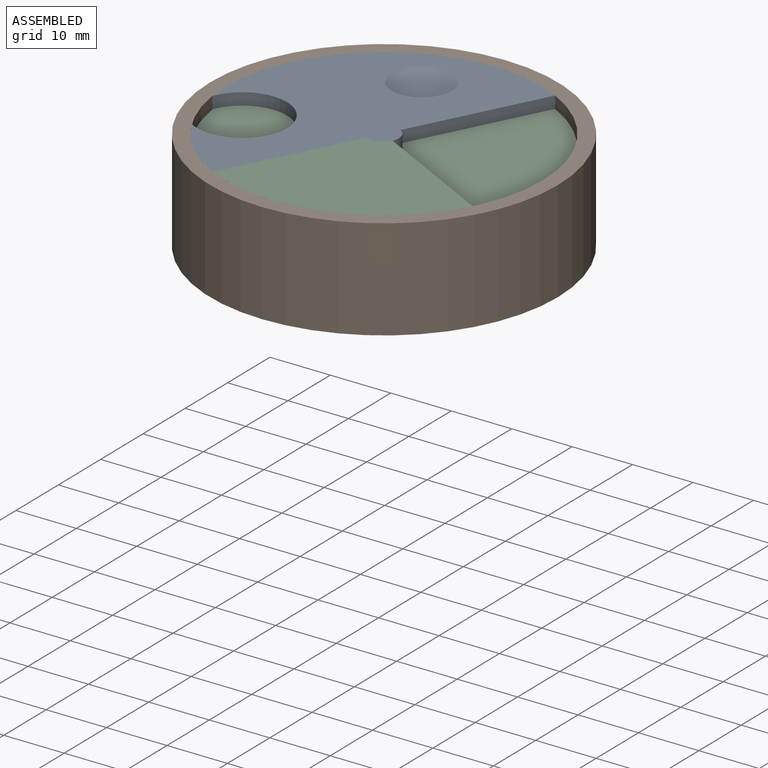
[diagram: assembled view]
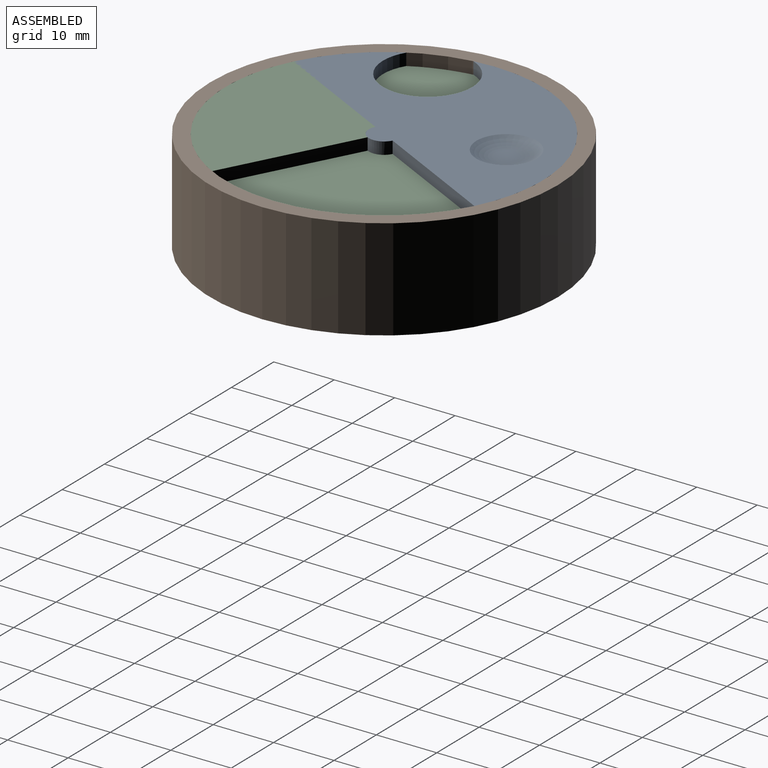
[diagram: assembled view, second angle]
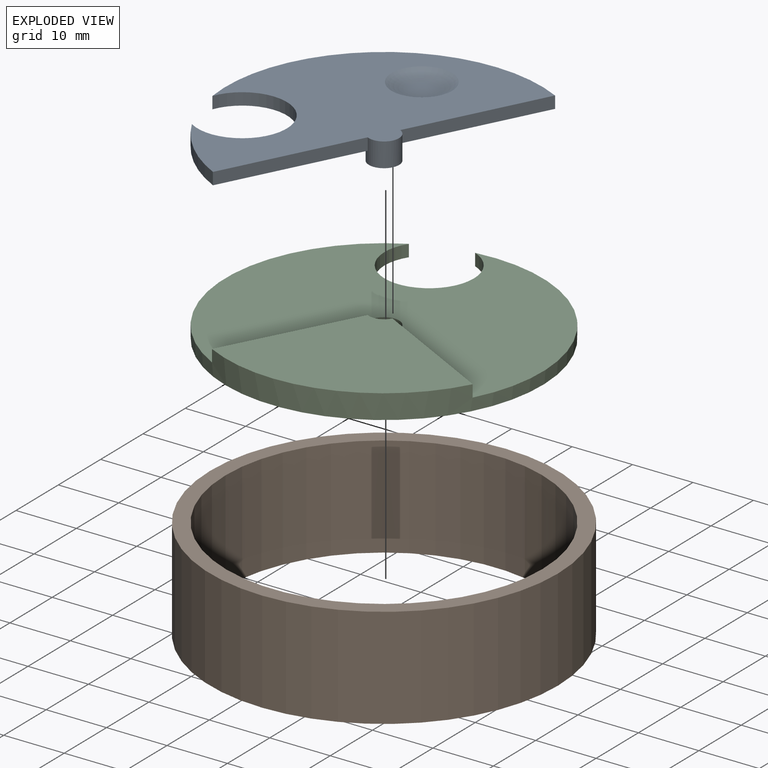
[diagram: exploded view]
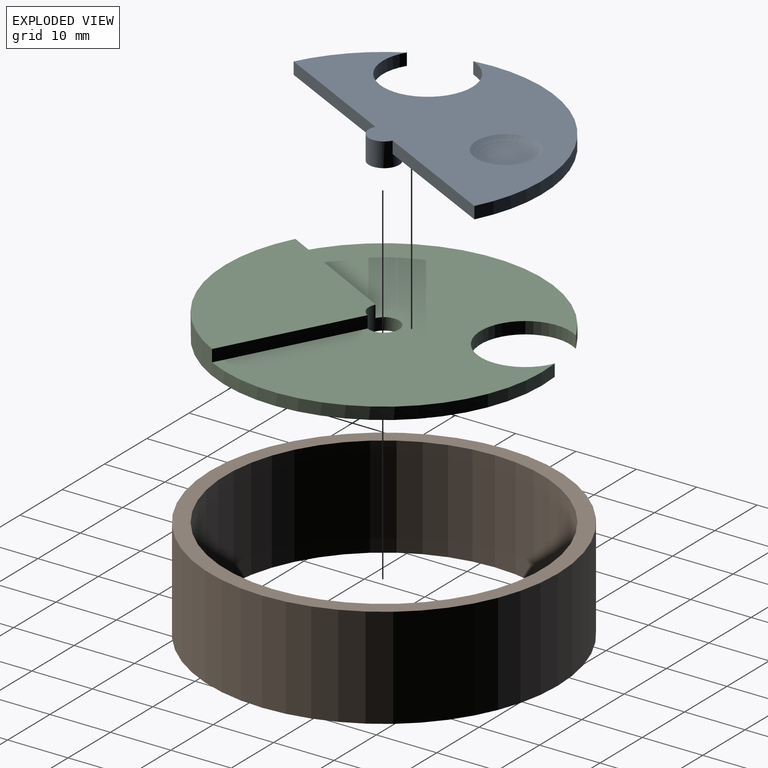
[diagram: exploded view, second angle]
ASSEMBLY  parts=3 mates=4
PART A: 11 faces, bbox 44.8x44.3x4 mm
  f0: plane 16.78x16.78mm, normal (-0.71,-0.71,0), area 47.5mm2, adj f1,f5,f6,f7
  f1: cylinder r=2.5mm len=5mm, axis (0,0,-1), area 47.1mm2, adj f0,f2,f6,f7,f8
  f2: plane 16.78x16.78mm, normal (-0.71,-0.71,0), area 47.5mm2, adj f1,f3,f6,f7
  f3: cylinder r=26.23mm len=44.34mm, axis (0,0,-1), area 114.1mm2, adj f2,f4,f6,f7
  f4: cylinder r=7.39mm len=14.78mm, axis (0,0,-1), area 72.4mm2, adj f3,f5,f6,f7
  f5: cylinder r=26.23mm len=13.83mm, axis (0,0,-1), area 31.7mm2, adj f0,f4,f6,f7
  f6: plane 44.77x44.34mm, normal (0,0,1), area 848.3mm2, adj f0,f1,f2,f3,f4,f5,f10
  f7: plane 44.77x44.34mm, normal (0,0,-1), area 907.2mm2, adj f0,f1,f2,f3,f4,f5
  f8: plane 5x5mm, normal (0,0,-1), area 19.6mm2, adj f1
  f9: plane 4x4mm, normal (0,0,1), area 12.6mm2, adj f10
  f10: torus R=2mm, axis (0,0,-1), area 71.8mm2, adj f6,f9
PART B: 4 faces, bbox 57.5x57.5x16.8 mm
  f0: cylinder r=26.23mm len=52.45mm, axis (0,0,-1), area 2762.4mm2, adj f2,f3
  f1: cylinder r=28.77mm len=57.53mm, axis (0,0,-1), area 3029.9mm2, adj f2,f3
  f2: plane 57.53x57.53mm, normal (0,0,1), area 438.8mm2, adj f0,f1
  f3: plane 57.53x57.53mm, normal (0,0,-1), area 438.8mm2, adj f0,f1
PART C: 8 faces, bbox 52.5x52x4 mm
  f0: plane 52.45x44.34mm, normal (0,0,1), area 1442.5mm2, adj f1,f2,f3,f5,f6
  f1: cylinder r=7.39mm len=14.78mm, axis (0,0,1), area 72.4mm2, adj f0,f2,f4
  f2: cylinder r=26.23mm len=52.45mm, axis (0,0,1), area 393mm2, adj f0,f1,f4,f5,f6,f7
  f3: cylinder r=2.5mm len=5mm, axis (0,0,1), area 39.3mm2, adj f0,f4,f5,f6,f7
  f4: plane 52.45x52.02mm, normal (0,0,-1), area 1977.8mm2, adj f1,f2,f3
  f5: plane 16.78x16.78mm, normal (0.71,0.71,0), area 47.5mm2, adj f0,f2,f3,f7
  f6: plane 16.78x16.78mm, normal (-0.71,0.71,0), area 47.5mm2, adj f0,f2,f3,f7
  f7: plane 37.09x24.46mm, normal (0,0,1), area 535.3mm2, adj f2,f3,f5,f6
PLACE A rot(axis=(0,0,1),107.9deg) t=(-4.82,3.89,11.98)mm
PLACE B t=(-4.82,3.89,-2.79)mm fixed
PLACE C rot(axis=(0,0,1),17.3deg) t=(-4.82,3.89,11.98)mm
MATE cylindrical A.f5 <-> B.f1  axis (0,0,1) through (-4.82,3.89,13.98)mm
MATE planar C.f0 <-> A.f7  axis (0,0,1) through (-5.91,7.38,11.98)mm
MATE planar A.f6 <-> B.f1  axis (0,0,1) through (-13.31,9.99,13.98)mm
MATE cylindrical C.f2 <-> B.f0  axis (0,0,1) through (-4.82,3.89,11.98)mm
